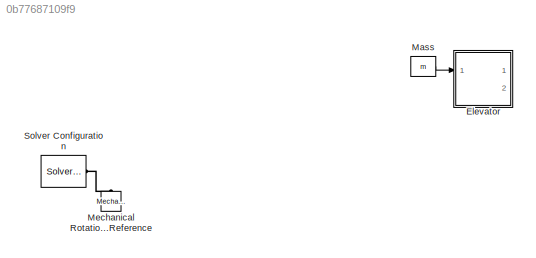
MODEL slx_0b77687109f9
KIND model
CONFIG AbsTol = auto
CONFIG EnableMultiTasking = off
CONFIG FixedStep = auto
CONFIG MaxStep = auto
CONFIG MinStep = auto
CONFIG PreLoadFcn = G = 10;\nRdrum = 0.25;\nm = 1000;
CONFIG RelTol = 1e-3
CONFIG SampleTimeConstraint = Unconstrained
CONFIG Solver = VariableStepAuto
CONFIG SolverName = VariableStepAuto
CONFIG StartTime = 0.0
CONFIG StopTime = 10.0
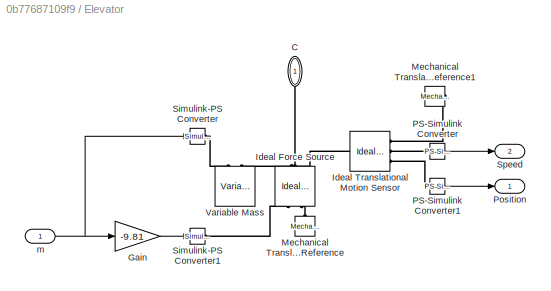
BLOCK [SubSystem] Elevator 
  Ports = [1, 2, 0, 0, 0, 1]
  RequestExecContextInheritance = off
BLOCK [PMIOPort] Elevator /C
  Side = Left
BLOCK [Gain] Elevator /Gain
  Gain = -9.81
  OutDataTypeStr = Inherit: Inherit via internal rule
  ParamDataTypeStr = Inherit: Inherit via internal rule
  SaturateOnIntegerOverflow = off
BLOCK [Reference] Elevator /Ideal Force Source  REF=fl_lib/Mechanical/Mechanical Sources/Ideal Force Source
  Ports = [0, 0, 0, 0, 0, 1, 2]
  SourceBlock = fl_lib/Mechanical/Mechanical Sources/Ideal Force Source
  SourceProductBaseCode = SS
  SourceProductName = Simscape
  SourceType = Ideal Force Source
BLOCK [Reference] Elevator /Ideal Translational Motion Sensor  REF=fl_lib/Mechanical/Mechanical Sensors/Ideal Translational
Motion Sensor
  Ports = [0, 0, 0, 0, 0, 1, 3]
  SourceBlock = fl_lib/Mechanical/Mechanical Sensors/Ideal Translational\nMotion Sensor
  SourceProductBaseCode = SS
  SourceProductName = Simscape
  SourceType = Ideal Translational\nMotion Sensor
BLOCK [Reference] Elevator /Mechanical Translational Reference  REF=fl_lib/Mechanical/Translational
Elements/Mechanical
Translational
Reference
  Ports = [0, 0, 0, 0, 0, 1]
  SourceBlock = fl_lib/Mechanical/Translational\nElements/Mechanical\nTranslational\nReference
  SourceProductBaseCode = SS
  SourceProductName = Simscape
  SourceType = Mechanical\nTranslational\nReference
BLOCK [Reference] Elevator /Mechanical Translational Reference1  REF=fl_lib/Mechanical/Translational
Elements/Mechanical
Translational
Reference
  Ports = [0, 0, 0, 0, 0, 1]
  SourceBlock = fl_lib/Mechanical/Translational\nElements/Mechanical\nTranslational\nReference
  SourceProductBaseCode = SS
  SourceProductName = Simscape
  SourceType = Mechanical\nTranslational\nReference
BLOCK [Reference] Elevator /PS-Simulink Converter  REF=nesl_utility/PS-Simulink
Converter
  Ports = [0, 1, 0, 0, 0, 1]
  SourceBlock = nesl_utility/PS-Simulink\nConverter
  SourceProductBaseCode = SS
  SourceProductName = Simscape
  SourceType = PS-Simulink\nConverter
BLOCK [Reference] Elevator /PS-Simulink Converter1  REF=nesl_utility/PS-Simulink
Converter
  Ports = [0, 1, 0, 0, 0, 1]
  SourceBlock = nesl_utility/PS-Simulink\nConverter
  SourceProductBaseCode = SS
  SourceProductName = Simscape
  SourceType = PS-Simulink\nConverter
BLOCK [Outport] Elevator /Position
  IconDisplay = Port number
BLOCK [Reference] Elevator /Simulink-PS Converter  REF=nesl_utility/Simulink-PS
Converter
  Ports = [1, 0, 0, 0, 0, 0, 1]
  SourceBlock = nesl_utility/Simulink-PS\nConverter
  SourceProductBaseCode = SS
  SourceProductName = Simscape
  SourceType = Simulink-PS\nConverter
BLOCK [Reference] Elevator /Simulink-PS Converter1  REF=nesl_utility/Simulink-PS
Converter
  Ports = [1, 0, 0, 0, 0, 0, 1]
  SourceBlock = nesl_utility/Simulink-PS\nConverter
  SourceProductBaseCode = SS
  SourceProductName = Simscape
  SourceType = Simulink-PS\nConverter
BLOCK [Outport] Elevator /Speed
  IconDisplay = Port number
  Port = 2
BLOCK [Reference] Elevator /Variable Mass  REF=sdl_lib/Inertias & Loads/Variable Mass
  Ports = [0, 0, 0, 0, 0, 2]
  SourceBlock = sdl_lib/Inertias & Loads/Variable Mass
  SourceProductBaseCode = LD
  SourceProductName = Simscape Driveline
  SourceType = Variable Mass
BLOCK [Inport] Elevator /m
  IconDisplay = Port number
BLOCK [Constant] Mass 
  Value = m
BLOCK [Reference] Mechanical Rotational Reference  REF=fl_lib/Mechanical/Rotational Elements/Mechanical
Rotational Reference
  Ports = [0, 0, 0, 0, 0, 1]
  SourceBlock = fl_lib/Mechanical/Rotational Elements/Mechanical\nRotational Reference
  SourceProductBaseCode = SS
  SourceProductName = Simscape
  SourceType = Mechanical\nRotational Reference
BLOCK [Reference] Solver Configuration  REF=nesl_utility/Solver
Configuration
  Ports = [0, 0, 0, 0, 0, 0, 1]
  SourceBlock = nesl_utility/Solver\nConfiguration
  SourceProductBaseCode = SS
  SourceProductName = Simscape
  SourceType = Solver\nConfiguration
LINE Elevator /Gain:1 -> Elevator /Simulink-PS Converter1:1
LINE Elevator /PS-Simulink Converter1:1 -> Elevator /Position:1
LINE Elevator /PS-Simulink Converter:1 -> Elevator /Speed:1
NET Elevator /m:1 -> Elevator /Gain:1, Elevator /Simulink-PS Converter:1
LINE Mass :1 -> Elevator :1
PNET net1: Elevator /C:RConn1 -- Elevator /Ideal Force Source:LConn1 -- Elevator /Ideal Translational Motion Sensor:LConn1 -- Elevator /Variable Mass:LConn2
PLINE Elevator /Ideal Force Source:RConn1 -- Elevator /Simulink-PS Converter1:RConn1
PLINE Elevator /Ideal Force Source:RConn2 -- Elevator /Mechanical Translational Reference:LConn1
PLINE Elevator /Ideal Translational Motion Sensor:RConn1 -- Elevator /Mechanical Translational Reference1:LConn1
PLINE Elevator /Ideal Translational Motion Sensor:RConn2 -- Elevator /PS-Simulink Converter:LConn1
PLINE Elevator /Ideal Translational Motion Sensor:RConn3 -- Elevator /PS-Simulink Converter1:LConn1
PLINE Elevator /Simulink-PS Converter:RConn1 -- Elevator /Variable Mass:LConn1
PLINE Mechanical Rotational Reference:LConn1 -- Solver Configuration:RConn1
note: NET lines group one-source signal fan-out (src -> all destinations, sorted); 1:1 wires keep LINE; PNET lines group multi-terminal physical nets as a canonical sorted terminal list (undirected conserving connections); 2-terminal nets keep the pairwise PLINE form
